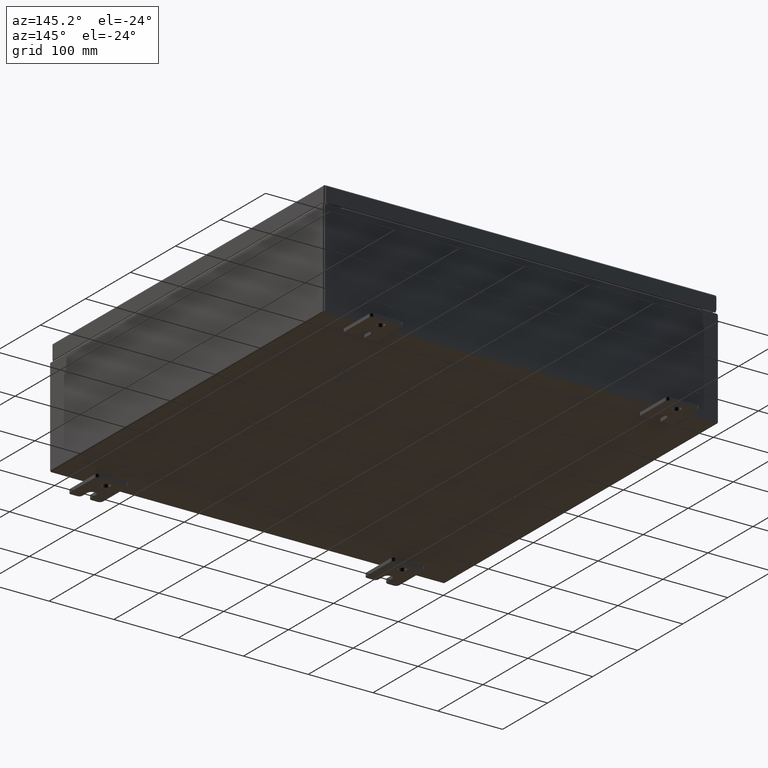
[diagram: clean part render]
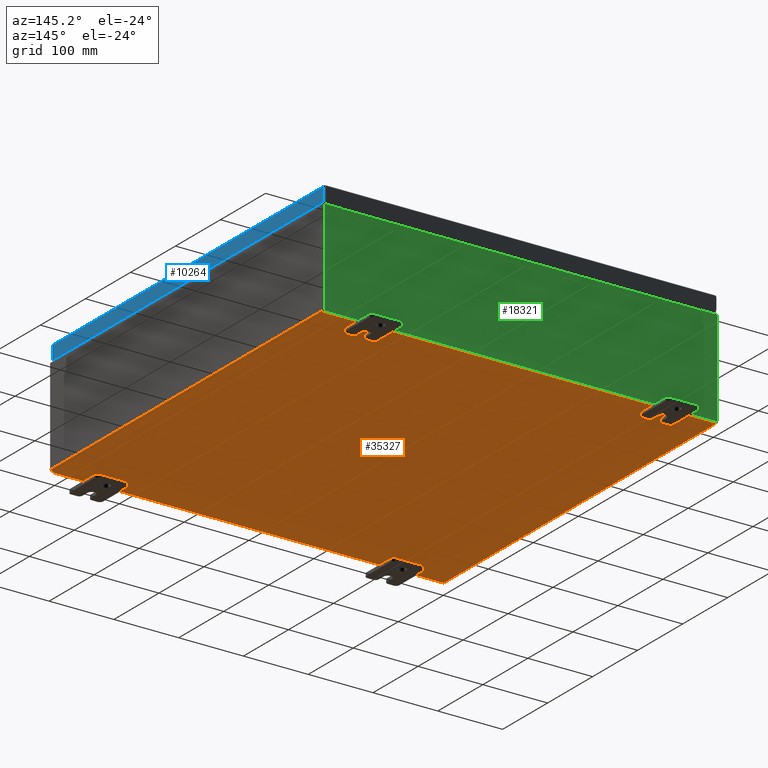
[diagram: same view with three faces highlighted in distinct colors, each labeled with its STEP entity id]
A machine part, auxiliary view with three faces highlighted in distinct colors.
Their STEP definitions:

[orange] entity #35327 — the highlighted planar face has unit normal (0, 0, -1).
#1521 = CARTESIAN_POINT ( 'NONE',  ( -11.91230000000000400, -11.92530000000000400, -0.07469999999999996100 ) ) ;
#2372 = CARTESIAN_POINT ( 'NONE',  ( 11.91229999999999800, 11.92529999999999600, -0.07469999999999996100 ) ) ;
#3217 = ORIENTED_EDGE ( 'NONE', *, *, #53782, .F. ) ;
#7909 = ORIENTED_EDGE ( 'NONE', *, *, #54813, .T. ) ;
#8144 = DIRECTION ( 'NONE',  ( -0.0000000000000000000, -1.000000000000000000, -0.0000000000000000000 ) ) ;
#10966 = FACE_OUTER_BOUND ( 'NONE', #60625, .T. ) ;
#11161 = ORIENTED_EDGE ( 'NONE', *, *, #43300, .T. ) ;
#11899 = CARTESIAN_POINT ( 'NONE',  ( 11.91229999999998900, -11.92530000000000400, -0.07469999999999998900 ) ) ;
#12099 = DIRECTION ( 'NONE',  ( -1.000000000000000000, -0.0000000000000000000, -0.0000000000000000000 ) ) ;
#13603 = CARTESIAN_POINT ( 'NONE',  ( -12.00000000000000400, -11.92530000000000400, -0.07469999999999998900 ) ) ;
#14409 = LINE ( 'NONE', #13603, #37239 ) ;
#17654 = VERTEX_POINT ( 'NONE', #41582 ) ;
#18862 = VECTOR ( 'NONE', #8144, 39.37007874015748100 ) ;
#19325 = CARTESIAN_POINT ( 'NONE',  ( -11.91230000000000400, -11.92530000000000000, -0.07469999999999996100 ) ) ;
#25796 = LINE ( 'NONE', #1521, #59622 ) ;
#28521 = ORIENTED_EDGE ( 'NONE', *, *, #58731, .F. ) ;
#31827 = LINE ( 'NONE', #52482, #18862 ) ;
#35327 = ADVANCED_FACE ( 'NONE', ( #10966 ), #44665, .T. ) ;
#36375 = CARTESIAN_POINT ( 'NONE',  ( -12.00000000000000400, 11.92529999999999800, -0.07469999999999998900 ) ) ;
#37239 = VECTOR ( 'NONE', #42668, 39.37007874015748100 ) ;
#39743 = VERTEX_POINT ( 'NONE', #2372 ) ;
#40242 = DIRECTION ( 'NONE',  ( -0.0000000000000000000, 1.000000000000000000, -0.0000000000000000000 ) ) ;
#41464 = VECTOR ( 'NONE', #12099, 39.37007874015748100 ) ;
#41582 = CARTESIAN_POINT ( 'NONE',  ( -11.91230000000000400, 11.92529999999999800, -0.07469999999999998900 ) ) ;
#42668 = DIRECTION ( 'NONE',  ( 1.000000000000000000, 0.0000000000000000000, 0.0000000000000000000 ) ) ;
#43300 = EDGE_CURVE ( 'NONE', #39743, #53460, #31827, .T. ) ;
#43900 = DIRECTION ( 'NONE',  ( -1.000000000000000000, 0.0000000000000000000, -0.0000000000000000000 ) ) ;
#43992 = DIRECTION ( 'NONE',  ( 0.0000000000000000000, 0.0000000000000000000, -1.000000000000000000 ) ) ;
#44327 = CARTESIAN_POINT ( 'NONE',  ( 0.0000000000000000000, 0.0000000000000000000, -0.07469999999999998900 ) ) ;
#44665 = PLANE ( 'NONE',  #56170 ) ;
#52482 = CARTESIAN_POINT ( 'NONE',  ( 11.91229999999999800, 11.92529999999999800, -0.07469999999999996100 ) ) ;
#52564 = LINE ( 'NONE', #36375, #41464 ) ;
#53460 = VERTEX_POINT ( 'NONE', #11899 ) ;
#53782 = EDGE_CURVE ( 'NONE', #55945, #53460, #14409, .T. ) ;
#54813 = EDGE_CURVE ( 'NONE', #55945, #17654, #25796, .T. ) ;
#55945 = VERTEX_POINT ( 'NONE', #19325 ) ;
#56170 = AXIS2_PLACEMENT_3D ( 'NONE', #44327, #43992, #43900 ) ;
#58731 = EDGE_CURVE ( 'NONE', #39743, #17654, #52564, .T. ) ;
#59622 = VECTOR ( 'NONE', #40242, 39.37007874015748100 ) ;
#60625 = EDGE_LOOP ( 'NONE', ( #3217, #7909, #28521, #11161 ) ) ;

[blue] entity #10264 — the highlighted planar face has unit normal (1, 0, 0).
#2730 = LINE ( 'NONE', #17515, #25630 ) ;
#3748 = LINE ( 'NONE', #24706, #26653 ) ;
#5224 = ORIENTED_EDGE ( 'NONE', *, *, #22586, .T. ) ;
#7302 = CARTESIAN_POINT ( 'NONE',  ( 11.93750000000000000, 0.0000000000000000000, -0.08770000000000026400 ) ) ;
#9748 = VECTOR ( 'NONE', #62728, 39.37007874015748100 ) ;
#10264 = ADVANCED_FACE ( 'NONE', ( #30183 ), #25457, .T. ) ;
#10696 = CARTESIAN_POINT ( 'NONE',  ( 11.93750000000000200, 11.84865786437627300, -0.9377000000000002000 ) ) ;
#11803 = VERTEX_POINT ( 'NONE', #54826 ) ;
#13464 = AXIS2_PLACEMENT_3D ( 'NONE', #25681, #25331, #25235 ) ;
#16608 = EDGE_LOOP ( 'NONE', ( #55458, #55187, #5224, #40742 ) ) ;
#17515 = CARTESIAN_POINT ( 'NONE',  ( 11.93750000000000000, 11.84865786437626900, 1.136448765364333600E-013 ) ) ;
#17531 = DIRECTION ( 'NONE',  ( -2.532419924601866100E-015, -6.982962677686265900E-015, 1.000000000000000000 ) ) ;
#20929 = CARTESIAN_POINT ( 'NONE',  ( 11.93750000000000200, -11.84865786437626200, -0.9377000000000002000 ) ) ;
#22586 = EDGE_CURVE ( 'NONE', #42204, #11803, #2730, .T. ) ;
#24182 = CARTESIAN_POINT ( 'NONE',  ( 11.93750000000000000, -11.84865786437626900, -0.07470000000000015500 ) ) ;
#24706 = CARTESIAN_POINT ( 'NONE',  ( 11.93750000000000200, -11.93750000000000000, -0.9377000000000002000 ) ) ;
#25235 = DIRECTION ( 'NONE',  ( 2.532419924601866100E-015, 0.0000000000000000000, -1.000000000000000000 ) ) ;
#25331 = DIRECTION ( 'NONE',  ( 1.000000000000000000, 0.0000000000000000000, 2.532419924601866100E-015 ) ) ;
#25457 = PLANE ( 'NONE',  #13464 ) ;
#25630 = VECTOR ( 'NONE', #17531, 39.37007874015748100 ) ;
#25681 = CARTESIAN_POINT ( 'NONE',  ( 11.93750000000000000, 0.0000000000000000000, 3.059669752903974500E-014 ) ) ;
#26653 = VECTOR ( 'NONE', #48899, 39.37007874015748100 ) ;
#30183 = FACE_OUTER_BOUND ( 'NONE', #16608, .T. ) ;
#38539 = CARTESIAN_POINT ( 'NONE',  ( 11.93750000000000000, -11.84865786437626900, -0.08770000000000026400 ) ) ;
#40742 = ORIENTED_EDGE ( 'NONE', *, *, #43171, .T. ) ;
#42204 = VERTEX_POINT ( 'NONE', #10696 ) ;
#42260 = VERTEX_POINT ( 'NONE', #20929 ) ;
#42755 = EDGE_CURVE ( 'NONE', #42260, #51475, #48362, .T. ) ;
#43171 = EDGE_CURVE ( 'NONE', #11803, #51475, #60365, .T. ) ;
#47591 = VECTOR ( 'NONE', #55658, 39.37007874015748100 ) ;
#48362 = LINE ( 'NONE', #24182, #9748 ) ;
#48899 = DIRECTION ( 'NONE',  ( 0.0000000000000000000, -1.000000000000000000, 0.0000000000000000000 ) ) ;
#51475 = VERTEX_POINT ( 'NONE', #38539 ) ;
#53278 = EDGE_CURVE ( 'NONE', #42204, #42260, #3748, .T. ) ;
#54826 = CARTESIAN_POINT ( 'NONE',  ( 11.93750000000000000, 11.84865786437626800, -0.08770000000000026400 ) ) ;
#55187 = ORIENTED_EDGE ( 'NONE', *, *, #53278, .F. ) ;
#55458 = ORIENTED_EDGE ( 'NONE', *, *, #42755, .F. ) ;
#55658 = DIRECTION ( 'NONE',  ( 0.0000000000000000000, -1.000000000000000000, 0.0000000000000000000 ) ) ;
#60365 = LINE ( 'NONE', #7302, #47591 ) ;
#62728 = DIRECTION ( 'NONE',  ( -2.532419924601866100E-015, -6.982962677686265900E-015, 1.000000000000000000 ) ) ;

[green] entity #18321 — the highlighted planar face has unit normal (0, -1, 0).
#408 = ORIENTED_EDGE ( 'NONE', *, *, #8142, .T. ) ;
#819 = CARTESIAN_POINT ( 'NONE',  ( -10.88720000000000000, 0.0000000000000000000, 0.0000000000000000000 ) ) ;
#897 = DIRECTION ( 'NONE',  ( 0.0000000000000000000, 0.0000000000000000000, -1.000000000000000000 ) ) ;
#1988 = ORIENTED_EDGE ( 'NONE', *, *, #41740, .F. ) ;
#2408 = CARTESIAN_POINT ( 'NONE',  ( 10.88720000000000200, 0.0000000000000000000, 0.0000000000000000000 ) ) ;
#3253 = ORIENTED_EDGE ( 'NONE', *, *, #48891, .F. ) ;
#4240 = CARTESIAN_POINT ( 'NONE',  ( -11.92530000000000000, 0.0000000000000000000, -2.925299999999999600 ) ) ;
#4876 = CARTESIAN_POINT ( 'NONE',  ( -11.92530000000000000, 0.0000000000000000000, 2.925300000000000000 ) ) ;
#5036 = DIRECTION ( 'NONE',  ( 0.0000000000000000000, 0.0000000000000000000, -1.000000000000000000 ) ) ;
#5113 = DIRECTION ( 'NONE',  ( -0.0000000000000000000, 1.000000000000000000, -0.0000000000000000000 ) ) ;
#5232 = CARTESIAN_POINT ( 'NONE',  ( -10.90587500000000000, 0.0000000000000000000, 2.874950000000001000 ) ) ;
#5893 = ORIENTED_EDGE ( 'NONE', *, *, #39251, .F. ) ;
#5941 = AXIS2_PLACEMENT_3D ( 'NONE', #45777, #45577, #45389 ) ;
#6754 = AXIS2_PLACEMENT_3D ( 'NONE', #53341, #24596, #58258 ) ;
#7383 = CIRCLE ( 'NONE', #42556, 0.01867499999999949400 ) ;
#7855 = EDGE_CURVE ( 'NONE', #22386, #29555, #41725, .T. ) ;
#8142 = EDGE_CURVE ( 'NONE', #11852, #21946, #40383, .T. ) ;
#8174 = VERTEX_POINT ( 'NONE', #9648 ) ;
#8501 = CARTESIAN_POINT ( 'NONE',  ( 11.92530000000000000, 0.0000000000000000000, 2.925300000000000000 ) ) ;
#8515 = EDGE_CURVE ( 'NONE', #8174, #55923, #38994, .T. ) ;
#8877 = CARTESIAN_POINT ( 'NONE',  ( 10.92454999999987600, 0.0000000000000000000, -4.742488117001160900E-013 ) ) ;
#8902 = VERTEX_POINT ( 'NONE', #59575 ) ;
#9146 = DIRECTION ( 'NONE',  ( -1.000000000000000000, -0.0000000000000000000, -0.0000000000000000000 ) ) ;
#9648 = CARTESIAN_POINT ( 'NONE',  ( -10.88720000000000000, 0.0000000000000000000, 2.912300000000000100 ) ) ;
#10204 = DIRECTION ( 'NONE',  ( -0.0000000000000000000, -0.0000000000000000000, 1.000000000000000000 ) ) ;
#10396 = CARTESIAN_POINT ( 'NONE',  ( -11.92530000000000000, 0.0000000000000000000, 2.925300000000000000 ) ) ;
#11695 = LINE ( 'NONE', #4240, #47285 ) ;
#11852 = VERTEX_POINT ( 'NONE', #54112 ) ;
#12891 = VECTOR ( 'NONE', #60347, 39.37007874015748100 ) ;
#13149 = ORIENTED_EDGE ( 'NONE', *, *, #62842, .T. ) ;
#13941 = CARTESIAN_POINT ( 'NONE',  ( 11.92530000000000000, 0.0000000000000000000, 2.925300000000000000 ) ) ;
#14014 = DIRECTION ( 'NONE',  ( 0.0000000000000000000, 0.0000000000000000000, -1.000000000000000000 ) ) ;
#14439 = CARTESIAN_POINT ( 'NONE',  ( -10.88720000000000000, 0.0000000000000000000, 2.874950000000001000 ) ) ;
#15060 = EDGE_CURVE ( 'NONE', #55923, #45643, #7383, .T. ) ;
#15333 = CARTESIAN_POINT ( 'NONE',  ( -11.92530000000000000, 0.0000000000000000000, 2.925300000000000000 ) ) ;
#15347 = LINE ( 'NONE', #13941, #39648 ) ;
#15563 = DIRECTION ( 'NONE',  ( 1.000000000000000000, 0.0000000000000000000, 0.0000000000000000000 ) ) ;
#15771 = ORIENTED_EDGE ( 'NONE', *, *, #47280, .T. ) ;
#17367 = FACE_OUTER_BOUND ( 'NONE', #58717, .T. ) ;
#18321 = ADVANCED_FACE ( 'NONE', ( #17367 ), #54083, .F. ) ;
#18944 = VERTEX_POINT ( 'NONE', #19420 ) ;
#19420 = CARTESIAN_POINT ( 'NONE',  ( 11.92530000000000000, 0.0000000000000000000, -2.925299999999999600 ) ) ;
#19600 = LINE ( 'NONE', #4876, #43867 ) ;
#20544 = ORIENTED_EDGE ( 'NONE', *, *, #39078, .T. ) ;
#20618 = LINE ( 'NONE', #22643, #57542 ) ;
#20870 = CARTESIAN_POINT ( 'NONE',  ( 10.92455000000000000, 0.0000000000000000000, 2.925300000000000000 ) ) ;
#21085 = DIRECTION ( 'NONE',  ( 1.000000000000000000, 0.0000000000000000000, 0.0000000000000000000 ) ) ;
#21946 = VERTEX_POINT ( 'NONE', #44845 ) ;
#22192 = VECTOR ( 'NONE', #33307, 39.37007874015748100 ) ;
#22305 = CARTESIAN_POINT ( 'NONE',  ( -10.92454999999999800, 0.0000000000000000000, 2.874950000000001000 ) ) ;
#22386 = VERTEX_POINT ( 'NONE', #20870 ) ;
#22643 = CARTESIAN_POINT ( 'NONE',  ( -10.88720000000000200, 0.0000000000000000000, 2.912300000000000100 ) ) ;
#24540 = CIRCLE ( 'NONE', #6754, 0.01867499999999949400 ) ;
#24596 = DIRECTION ( 'NONE',  ( -0.0000000000000000000, 1.000000000000000000, -0.0000000000000000000 ) ) ;
#25707 = ORIENTED_EDGE ( 'NONE', *, *, #53801, .F. ) ;
#27034 = ORIENTED_EDGE ( 'NONE', *, *, #7855, .T. ) ;
#28430 = CARTESIAN_POINT ( 'NONE',  ( -10.92454999999999800, 0.0000000000000000000, 0.0000000000000000000 ) ) ;
#29199 = ORIENTED_EDGE ( 'NONE', *, *, #8515, .F. ) ;
#29555 = VERTEX_POINT ( 'NONE', #8501 ) ;
#32025 = EDGE_CURVE ( 'NONE', #8174, #45403, #20618, .T. ) ;
#33159 = DIRECTION ( 'NONE',  ( -4.340572780400004900E-014, 0.0000000000000000000, -1.000000000000000000 ) ) ;
#33307 = DIRECTION ( 'NONE',  ( 0.0000000000000000000, 0.0000000000000000000, 1.000000000000000000 ) ) ;
#35126 = LINE ( 'NONE', #28430, #22192 ) ;
#37009 = VERTEX_POINT ( 'NONE', #39483 ) ;
#38767 = LINE ( 'NONE', #2408, #12891 ) ;
#38889 = VECTOR ( 'NONE', #897, 39.37007874015748100 ) ;
#38926 = DIRECTION ( 'NONE',  ( 1.000000000000000000, 0.0000000000000000000, 0.0000000000000000000 ) ) ;
#38994 = LINE ( 'NONE', #819, #38889 ) ;
#39078 = EDGE_CURVE ( 'NONE', #29555, #18944, #15347, .T. ) ;
#39251 = EDGE_CURVE ( 'NONE', #45643, #8902, #35126, .T. ) ;
#39483 = CARTESIAN_POINT ( 'NONE',  ( 10.88720000000000200, 0.0000000000000000000, 2.874950000000001000 ) ) ;
#39648 = VECTOR ( 'NONE', #14014, 39.37007874015748100 ) ;
#40278 = VECTOR ( 'NONE', #10204, 39.37007874015748100 ) ;
#40383 = LINE ( 'NONE', #10396, #40278 ) ;
#41725 = LINE ( 'NONE', #15333, #41853 ) ;
#41740 = EDGE_CURVE ( 'NONE', #37009, #45403, #38767, .T. ) ;
#41853 = VECTOR ( 'NONE', #15563, 39.37007874015748100 ) ;
#42556 = AXIS2_PLACEMENT_3D ( 'NONE', #5232, #5113, #5036 ) ;
#43867 = VECTOR ( 'NONE', #38926, 39.37007874015748100 ) ;
#44845 = CARTESIAN_POINT ( 'NONE',  ( -11.92530000000000000, 0.0000000000000000000, 2.925300000000000000 ) ) ;
#45389 = DIRECTION ( 'NONE',  ( 0.0000000000000000000, -0.0000000000000000000, -1.000000000000000000 ) ) ;
#45403 = VERTEX_POINT ( 'NONE', #49276 ) ;
#45577 = DIRECTION ( 'NONE',  ( 0.0000000000000000000, -1.000000000000000000, 0.0000000000000000000 ) ) ;
#45643 = VERTEX_POINT ( 'NONE', #22305 ) ;
#45777 = CARTESIAN_POINT ( 'NONE',  ( 0.0000000000000000000, 0.0000000000000000000, 0.0000000000000000000 ) ) ;
#47280 = EDGE_CURVE ( 'NONE', #18944, #11852, #11695, .T. ) ;
#47285 = VECTOR ( 'NONE', #9146, 39.37007874015748100 ) ;
#48406 = VECTOR ( 'NONE', #33159, 39.37007874015748100 ) ;
#48891 = EDGE_CURVE ( 'NONE', #50665, #37009, #24540, .T. ) ;
#49276 = CARTESIAN_POINT ( 'NONE',  ( 10.88720000000000200, 0.0000000000000000000, 2.912300000000000100 ) ) ;
#50665 = VERTEX_POINT ( 'NONE', #60516 ) ;
#51379 = LINE ( 'NONE', #8877, #48406 ) ;
#53341 = CARTESIAN_POINT ( 'NONE',  ( 10.90587500000000200, 0.0000000000000000000, 2.874950000000001000 ) ) ;
#53475 = ORIENTED_EDGE ( 'NONE', *, *, #32025, .T. ) ;
#53801 = EDGE_CURVE ( 'NONE', #22386, #50665, #51379, .T. ) ;
#54083 = PLANE ( 'NONE',  #5941 ) ;
#54112 = CARTESIAN_POINT ( 'NONE',  ( -11.92530000000000000, 0.0000000000000000000, -2.925299999999999600 ) ) ;
#55923 = VERTEX_POINT ( 'NONE', #14439 ) ;
#57542 = VECTOR ( 'NONE', #21085, 39.37007874015748100 ) ;
#58258 = DIRECTION ( 'NONE',  ( 0.0000000000000000000, 0.0000000000000000000, -1.000000000000000000 ) ) ;
#58717 = EDGE_LOOP ( 'NONE', ( #5893, #62171, #29199, #53475, #1988, #3253, #25707, #27034, #20544, #15771, #408, #13149 ) ) ;
#59575 = CARTESIAN_POINT ( 'NONE',  ( -10.92454999999999800, 0.0000000000000000000, 2.925300000000000000 ) ) ;
#60347 = DIRECTION ( 'NONE',  ( 0.0000000000000000000, 0.0000000000000000000, 1.000000000000000000 ) ) ;
#60516 = CARTESIAN_POINT ( 'NONE',  ( 10.92455000000000000, 0.0000000000000000000, 2.874950000000001000 ) ) ;
#62171 = ORIENTED_EDGE ( 'NONE', *, *, #15060, .F. ) ;
#62842 = EDGE_CURVE ( 'NONE', #21946, #8902, #19600, .T. ) ;